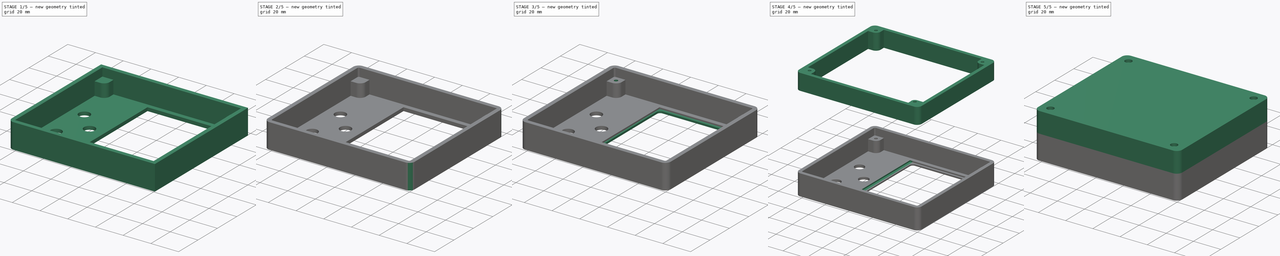
[diagram: build sequence overview — one tinted view per stage of 5, left to right]
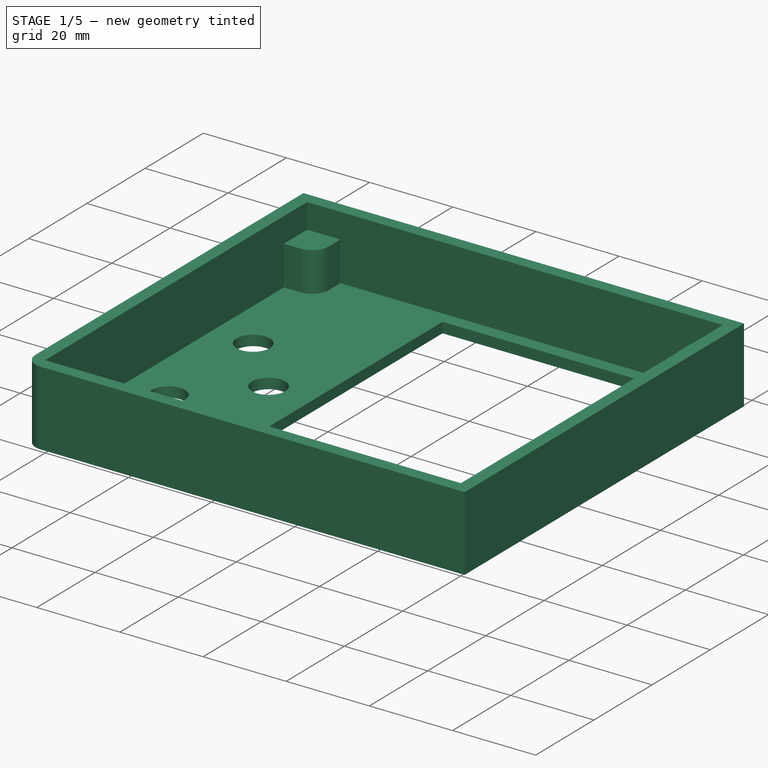
[diagram: stage 1 of 5 — iso view after this stage's code; geometry added in this stage tinted green]
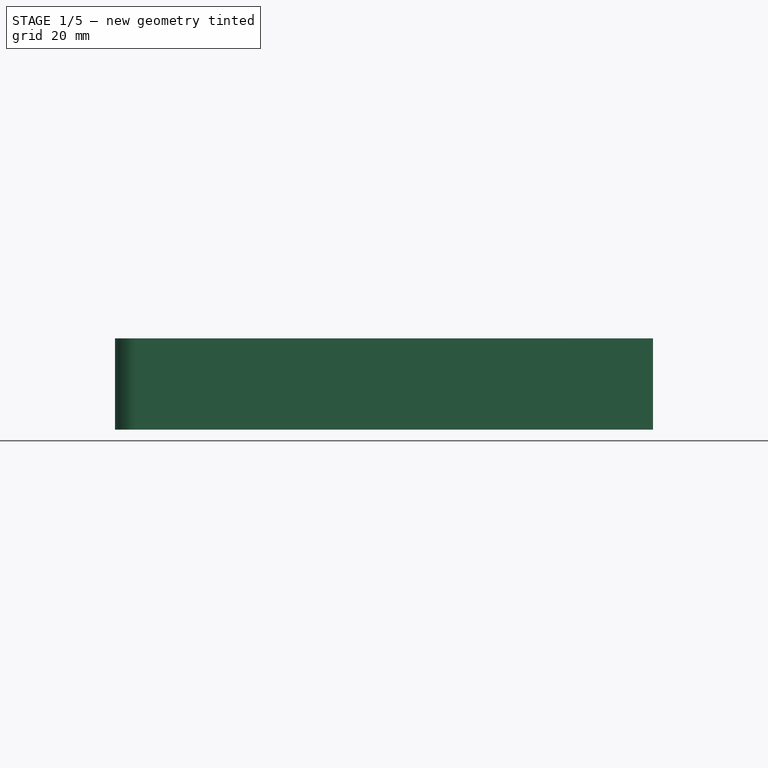
[diagram: stage 1 of 5 — front view after this stage's code; geometry added in this stage tinted green]
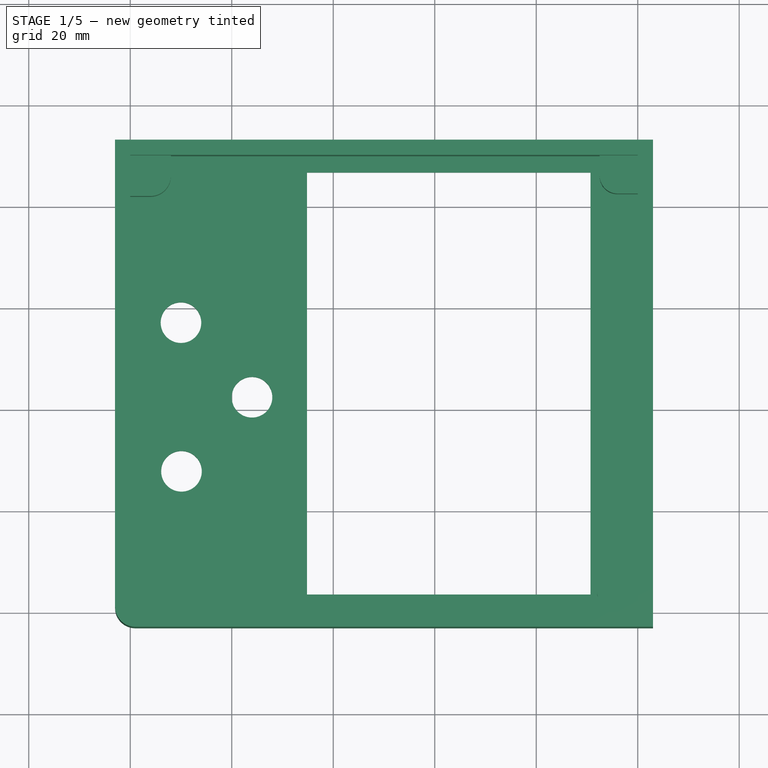
[diagram: stage 1 of 5 — top view after this stage's code; geometry added in this stage tinted green]
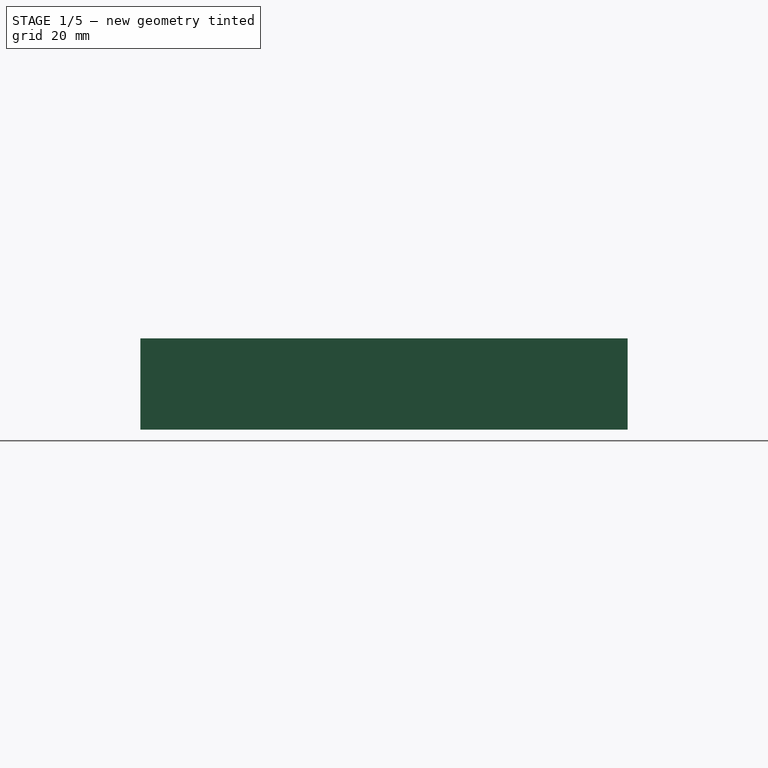
[diagram: stage 1 of 5 — right view after this stage's code; geometry added in this stage tinted green]
FCSTD DOCUMENT  (FreeCAD 0.21R33694 (Git))
Label: TFT_PANEL_ver0.1.3FCStd
License: All rights reserved
LicenseURL: http://en.wikipedia.org/wiki/All_rights_reserved
objects: Part::Fillet×11, Sketcher::SketchObject×10, Part::Extrusion×10, Part::MultiFuse×5, Part::Cut×3
note: 39 computed .brp shape members not serialized (recipe doc carries the construction recipe); baked Part::Feature solids carry a one-line shape summary decoded from their .brp

FEATURE [Sketcher::SketchObject] Sketch
  FullyConstrained = false
  sketch-geometry (18):
    g0: LineSegment StartX=0 StartY=0 StartZ=0 EndX=0 EndY=90 EndZ=0
    g1: LineSegment StartX=0 StartY=90 StartZ=0 EndX=100 EndY=90 EndZ=0
    g2: LineSegment StartX=100 StartY=90 StartZ=0 EndX=100 EndY=0 EndZ=0
    g3: LineSegment StartX=100 StartY=0 StartZ=0 EndX=0 EndY=0 EndZ=0
    g4: LineSegment StartX=90.7 StartY=86.8 StartZ=0 EndX=90.7 EndY=3.61483 EndZ=0
    g5: LineSegment StartX=90.7 StartY=3.61483 StartZ=0 EndX=34.8199 EndY=3.61483 EndZ=0
    g6: LineSegment StartX=34.8199 StartY=3.61483 StartZ=0 EndX=34.8199 EndY=86.8 EndZ=0
    g7: LineSegment StartX=34.8199 StartY=86.8 StartZ=0 EndX=90.7 EndY=86.8 EndZ=0
    g8: Circle CenterX=4.10008 CenterY=4 CenterZ=0 NormalX=0 NormalY=0 NormalZ=-1 AngleXU=0 Radius=1.7
    g9: Circle CenterX=95 CenterY=4 CenterZ=0 NormalX=0 NormalY=0 NormalZ=-1 AngleXU=0 Radius=1.7
    g10: Circle CenterX=4 CenterY=86 CenterZ=0 NormalX=0 NormalY=0 NormalZ=-1 AngleXU=0 Radius=1.7
    g11: Circle CenterX=96 CenterY=86 CenterZ=0 NormalX=0 NormalY=0 NormalZ=-1 AngleXU=0 Radius=1.7
    g12: GeomPoint X=9.98984 Y=57.2035 Z=0
    g13: Circle CenterX=9.98984 CenterY=57.2035 CenterZ=0 NormalX=0 NormalY=0 NormalZ=1 AngleXU=0 Radius=4
    g14: GeomPoint X=23.9903 Y=42.5019 Z=0
    g15: Circle CenterX=23.9903 CenterY=42.5019 CenterZ=0 NormalX=0 NormalY=0 NormalZ=1 AngleXU=0 Radius=4
    g16: GeomPoint X=10.0889 Y=27.902 Z=0
    g17: Circle CenterX=10.0889 CenterY=27.902 CenterZ=0 NormalX=0 NormalY=0 NormalZ=1 AngleXU=0 Radius=4
  constraints (6):
    c: Coincident(g13,g12)
    c: Radius(g13) = 4
    c: Coincident(g15,g14)
    c: Radius(g15) = 4
    c: Coincident(g17,g16)
    c: Radius(g17) = 4
FEATURE [Part::Extrusion] Extrude
  Base = -> Sketch
  Dir = (0,0,1)
  DirMode = 2
  FaceMakerClass = Part::FaceMakerBullseye
  LengthFwd = 2.5
  LengthRev = 0
  Solid = true
  Symmetric = false
FEATURE [Sketcher::SketchObject] Sketch001
  ExternalGeometry = -> [Extrude]
  FullyConstrained = false
  MapMode = 2
  Support = -> [Extrude]
  sketch-geometry (20):
    g0: ArcOfCircle CenterX=4.10008 CenterY=4 CenterZ=0 NormalX=0 NormalY=0 NormalZ=1 AngleXU=0 Radius=4 StartAngle=0 EndAngle=1.79806
    g1: ArcOfCircle CenterX=95 CenterY=4 CenterZ=0 NormalX=0 NormalY=0 NormalZ=1 AngleXU=0 Radius=3 StartAngle=1.52382 EndAngle=3.41066
    g2: ArcOfCircle CenterX=96 CenterY=86 CenterZ=0 NormalX=0 NormalY=0 NormalZ=1 AngleXU=0 Radius=3.5 StartAngle=3.14159 EndAngle=4.76718
    g3: ArcOfCircle CenterX=4 CenterY=86 CenterZ=0 NormalX=0 NormalY=0 NormalZ=1 AngleXU=0 Radius=4 StartAngle=4.70671 EndAngle=6.28463
    g4: LineSegment StartX=-3 StartY=93 StartZ=0 EndX=-3 EndY=-3 EndZ=0
    g5: LineSegment StartX=103 StartY=93 StartZ=0 EndX=103 EndY=-3 EndZ=0
    g6: LineSegment StartX=-3 StartY=-3 StartZ=0 EndX=103 EndY=-3 EndZ=0
    g7: LineSegment StartX=-3 StartY=93 StartZ=0 EndX=103 EndY=93 EndZ=0
    g8: LineSegment StartX=0 StartY=7.89715 StartZ=0 EndX=3.19882 EndY=7.89715 EndZ=0
    g9: LineSegment StartX=8.10008 StartY=0 StartZ=0 EndX=8.10008 EndY=4 EndZ=0
    g10: LineSegment StartX=3.97729 StartY=82.0001 StartZ=0 EndX=0 EndY=82.0001 EndZ=0
    g11: LineSegment StartX=96.1917 StartY=82.5053 StartZ=0 EndX=100 EndY=82.5053 EndZ=0
    g12: LineSegment StartX=8 StartY=86.0058 StartZ=0 EndX=8 EndY=90 EndZ=0
    g13: LineSegment StartX=92.1079 StartY=3.20251 StartZ=0 EndX=92.1079 EndY=0 EndZ=0
    g14: LineSegment StartX=95.1409 StartY=6.99669 StartZ=0 EndX=100 EndY=6.99669 EndZ=0
    g15: LineSegment StartX=0 StartY=82.0001 StartZ=0 EndX=0 EndY=7.89715 EndZ=0
    g16: LineSegment StartX=8 StartY=90 StartZ=0 EndX=92.5 EndY=90 EndZ=0
    g17: LineSegment StartX=8.10008 StartY=0 StartZ=0 EndX=92.1079 EndY=0 EndZ=0
    g18: LineSegment StartX=100 StartY=82.5053 StartZ=0 EndX=100 EndY=6.99669 EndZ=0
    g19: LineSegment StartX=92.5 StartY=86 StartZ=0 EndX=92.5 EndY=90 EndZ=0
  constraints (37):
    c: Radius(g0) = 4
    c: Radius(g1) = 3
    c: Radius(g3) = 4
    c: Radius(g2) = 3.5
    c: Vertical(g4)
    c: Vertical(g5)
    c: Horizontal(g6)
    c: Horizontal(g7)
    c: Horizontal(g8)
    c: Vertical(g9)
    c: Horizontal(g10)
    c: Horizontal(g11)
    c: Vertical(g12)
    c: Vertical(g13)
    c: Horizontal(g14)
    c: Coincident(g4,g6)
    c: Coincident(g0,g8)
    c: Tangent(g0,g9) = -1.5708
    c: Coincident(g1,g13)
    c: Coincident(g1,g14)
    c: Coincident(g6,g5)
    c: Coincident(g2,g11)
    c: Coincident(g5,g7)
    c: Coincident(g7,g4)
    c: Coincident(g3,g12)
    c: Coincident(g3,g10)
    c: Vertical(g15)
    c: Coincident(g16,g12)
    c: Coincident(g18,g11)
    c: Coincident(g18,g14)
    c: Coincident(g13,g17)
    c: Coincident(g17,g9)
    c: Coincident(g8,g15)
    c: Coincident(g10,g15)
    c: Vertical(g19)
    c: Tangent(g2,g19) = 1.5708
    c: Coincident(g19,g16)
FEATURE [Part::Extrusion] Extrude001
  Base = -> Sketch001
  Dir = (0,0,1)
  DirMode = 2
  FaceMakerClass = Part::FaceMakerBullseye
  LengthFwd = 12
  LengthRev = 0
  Solid = true
  Symmetric = false
FEATURE [Part::MultiFuse] Fusion
  Shapes = -> [Extrude001,Extrude]
FEATURE [Sketcher::SketchObject] Sketch002
  ExternalGeometry = -> [Fusion]
  FullyConstrained = false
  MapMode = 5
  Placement = pos=(0,0,12) rot=(0,0,1;0rad)
  Support = -> [Fusion]
  sketch-geometry (8):
    g0: LineSegment StartX=-3 StartY=93 StartZ=0 EndX=-3 EndY=-3 EndZ=0
    g1: LineSegment StartX=-3 StartY=93 StartZ=0 EndX=103 EndY=93 EndZ=0
    g2: LineSegment StartX=103 StartY=93 StartZ=0 EndX=103 EndY=-3 EndZ=0
    g3: LineSegment StartX=-3 StartY=-3 StartZ=0 EndX=103 EndY=-3 EndZ=0
    g4: LineSegment StartX=100 StartY=90 StartZ=0 EndX=100 EndY=0 EndZ=0
    g5: LineSegment StartX=0 StartY=90 StartZ=0 EndX=100 EndY=90 EndZ=0
    g6: LineSegment StartX=0 StartY=90 StartZ=0 EndX=0 EndY=0 EndZ=0
    g7: LineSegment StartX=0 StartY=0 StartZ=0 EndX=100 EndY=0 EndZ=0
  constraints (13):
    c: Coincident(g0,g-4)
    c: Coincident(g0,g-9)
    c: Coincident(g1,g0)
    c: Coincident(g1,g-8)
    c: Coincident(g2,g1)
    c: Coincident(g2,g-9)
    c: Coincident(g3,g0)
    c: Coincident(g3,g2)
    c: Vertical(g4)
    c: Coincident(g6,g5)
    c: Coincident(g5,g4)
    c: Coincident(g7,g4)
    c: Coincident(g6,g7)
FEATURE [Part::Extrusion] Extrude002
  Base = -> Sketch002
  Dir = (0,0,1)
  DirMode = 2
  FaceMakerClass = Part::FaceMakerBullseye
  LengthFwd = 6
  LengthRev = 0
  Solid = true
  Symmetric = false
FEATURE [Part::MultiFuse] Fusion001
  Shapes = -> [Fusion,Extrude002]
FEATURE [Part::Fillet] Fillet
  Base = -> Fusion001
  Edges = 2 edges r=4: [Edge2,Edge12]
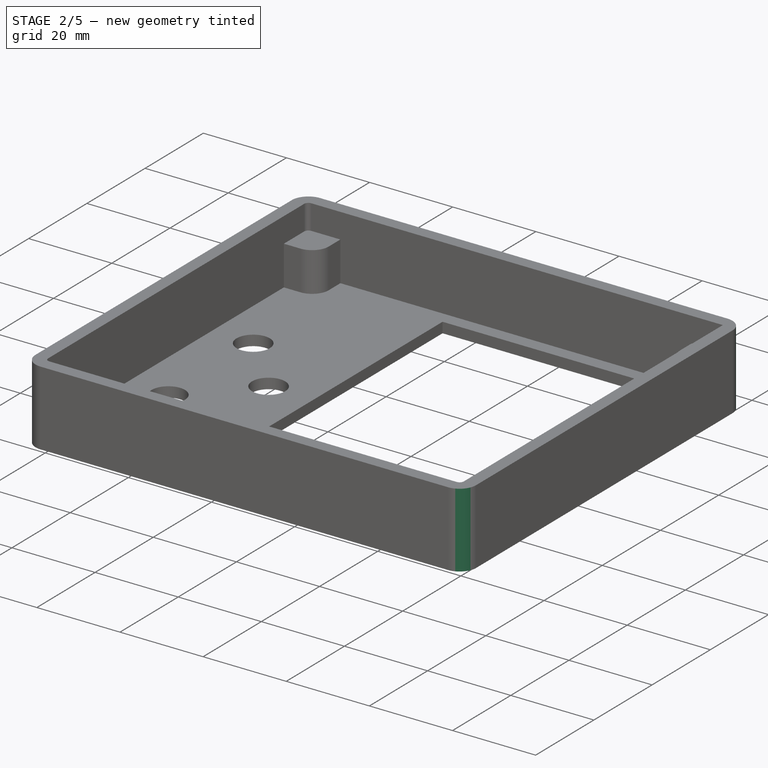
[diagram: stage 2 of 5 — iso view after this stage's code; geometry added in this stage tinted green]
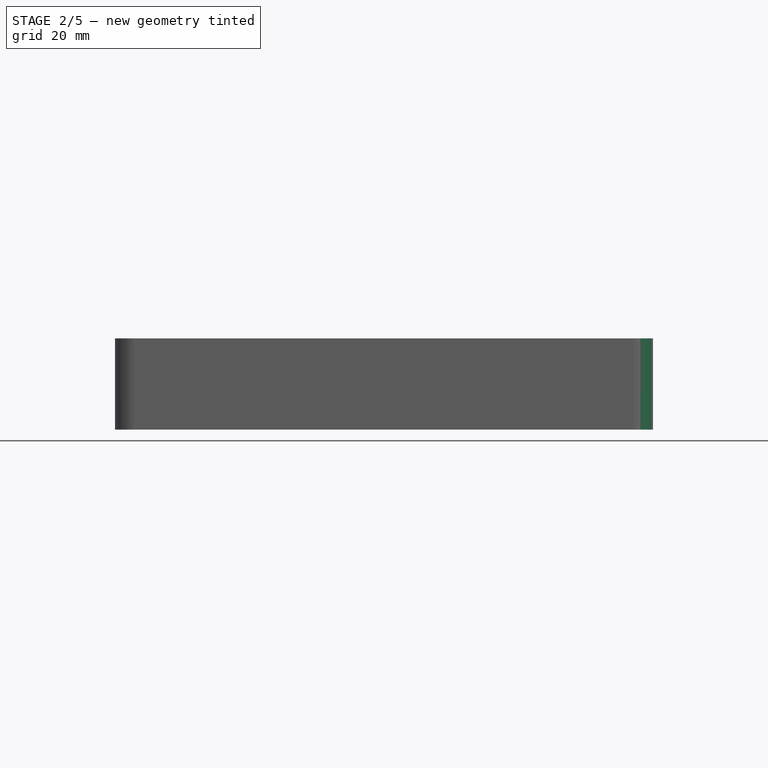
[diagram: stage 2 of 5 — front view after this stage's code; geometry added in this stage tinted green]
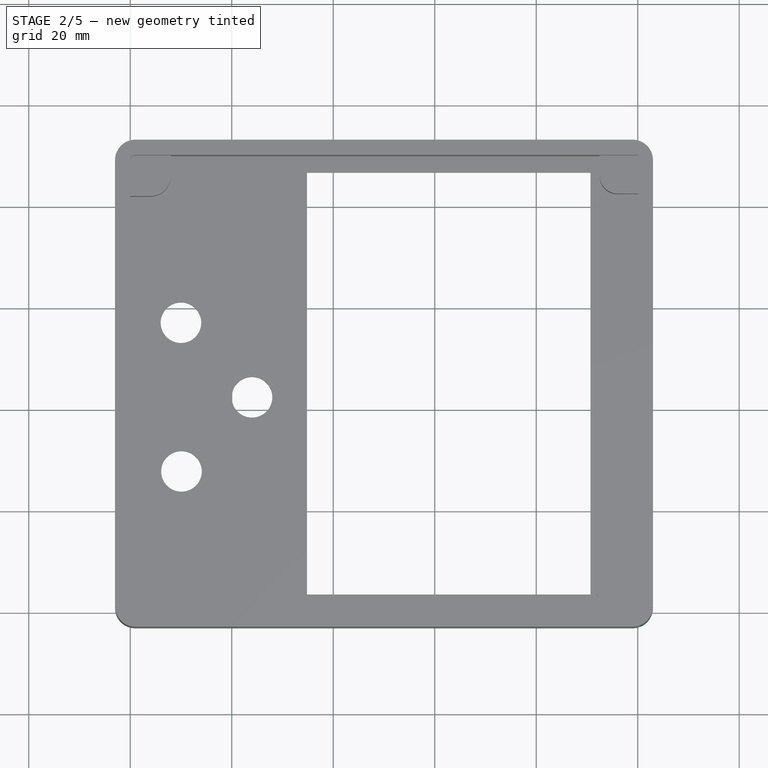
[diagram: stage 2 of 5 — top view after this stage's code; geometry added in this stage tinted green]
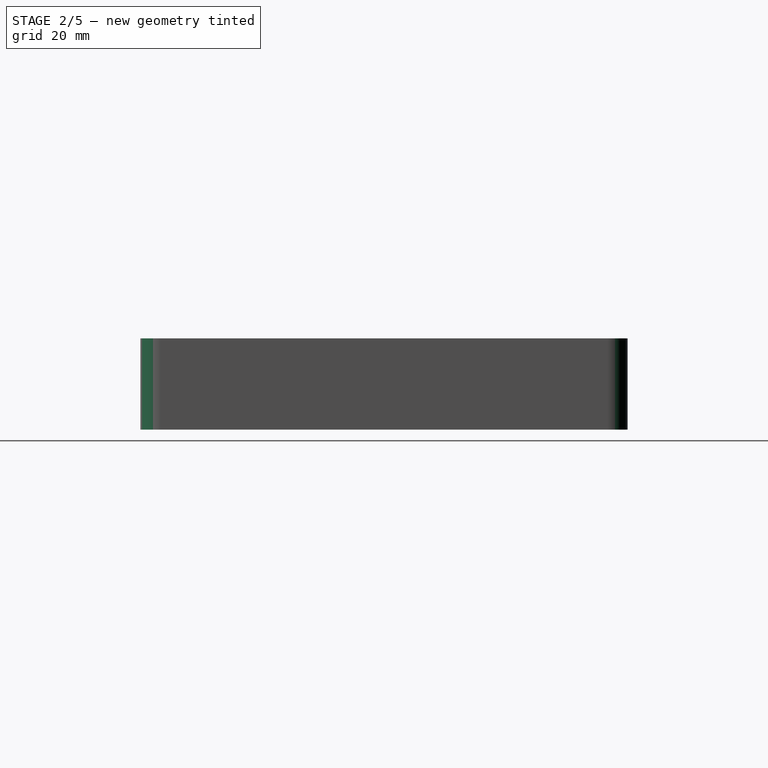
[diagram: stage 2 of 5 — right view after this stage's code; geometry added in this stage tinted green]
FEATURE [Part::Fillet] Fillet001
  Base = -> Fillet
  Edges = 2 edges r=4: [Edge39,Edge57]
FEATURE [Part::Fillet] Fillet002
  Base = -> Fillet001
  Edges = 2 edges r=4: [Edge19,Edge47]
FEATURE [Part::Fillet] Fillet003
  Base = -> Fillet002
  Edges = 2 edges r=4: [Edge20,Edge50]
FEATURE [Part::Fillet] Fillet004
  Base = -> Fillet003
  Edges = 1 edges r=1: [Edge30]
FEATURE [Part::Fillet] Fillet005
  Base = -> Fillet004
  Edges = 1 edges r=1: [Edge28]
FEATURE [Part::Fillet] Fillet006
  Base = -> Fillet005
  Edges = 1 edges r=1: [Edge27]
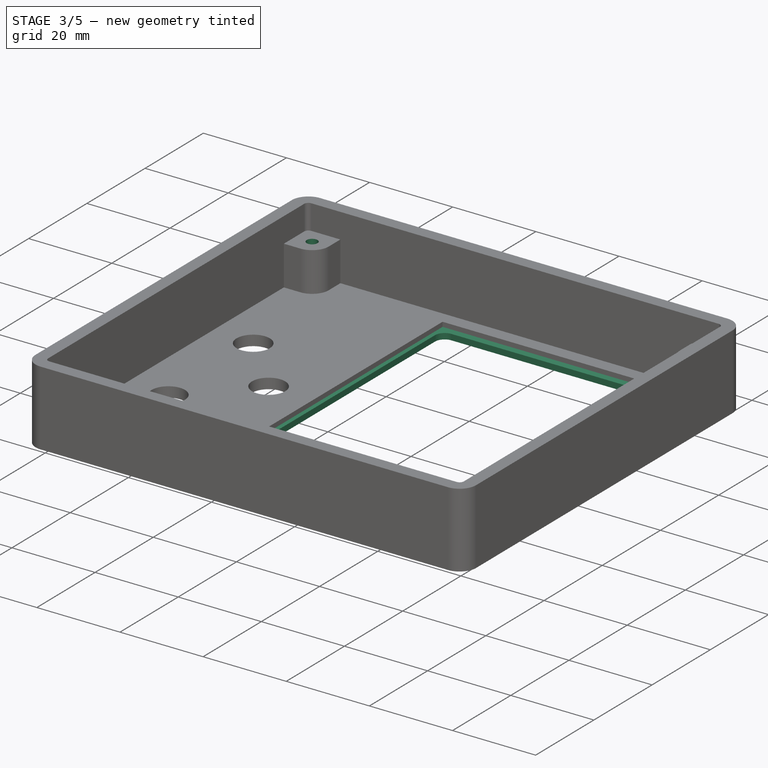
[diagram: stage 3 of 5 — iso view after this stage's code; geometry added in this stage tinted green]
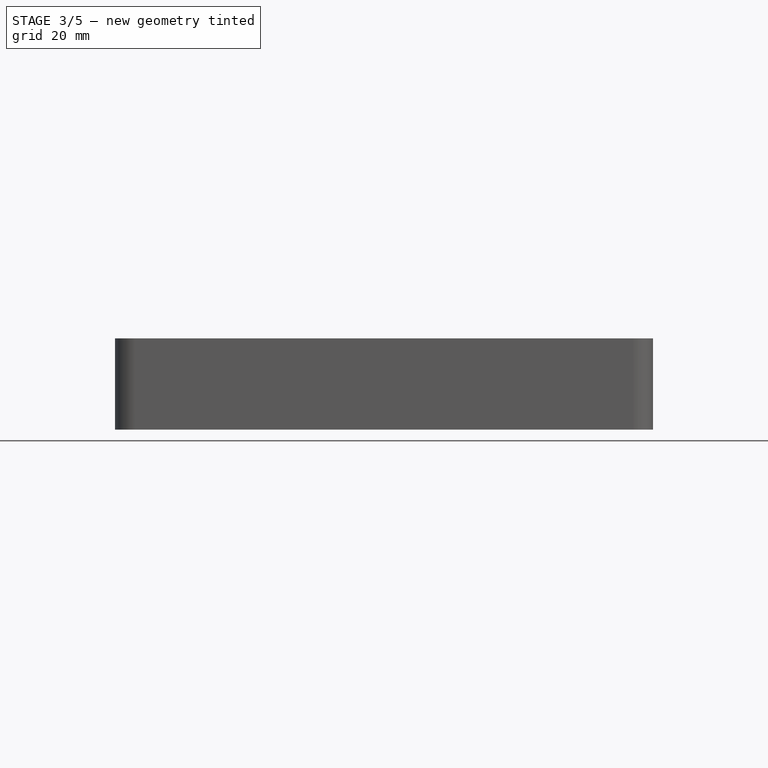
[diagram: stage 3 of 5 — front view after this stage's code; geometry added in this stage tinted green]
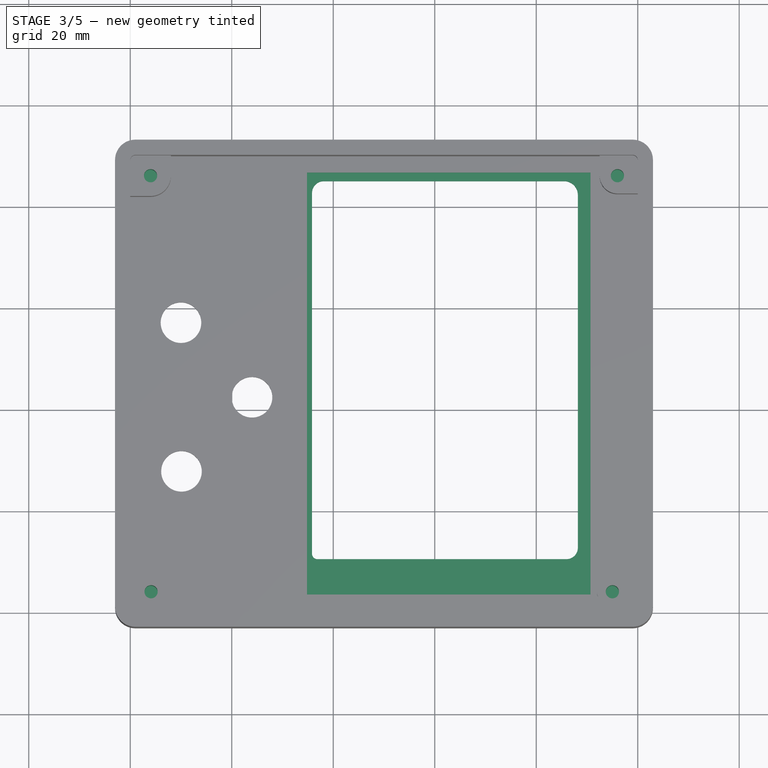
[diagram: stage 3 of 5 — top view after this stage's code; geometry added in this stage tinted green]
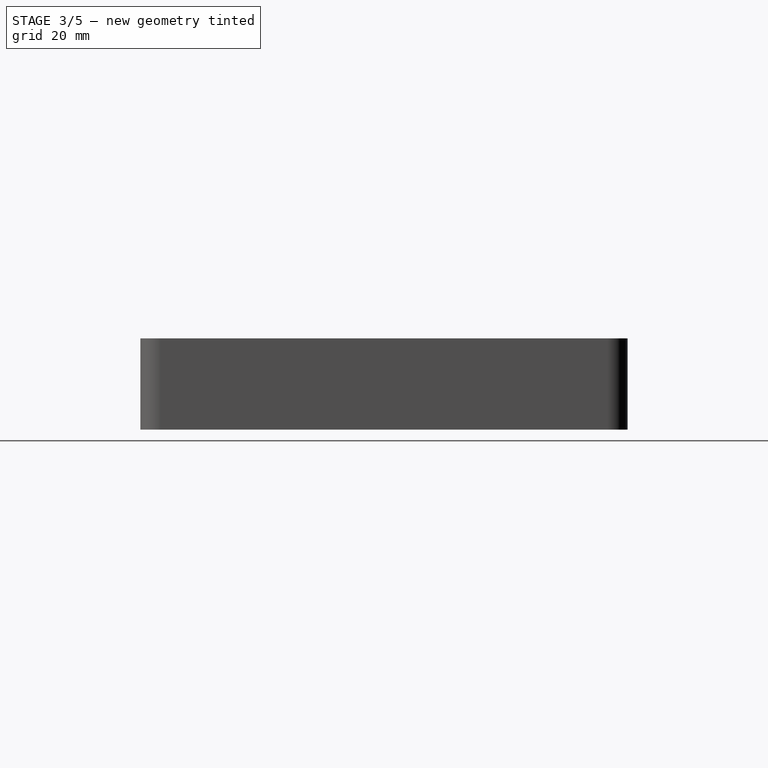
[diagram: stage 3 of 5 — right view after this stage's code; geometry added in this stage tinted green]
FEATURE [Part::Fillet] Fillet007
  Base = -> Fillet006
  Edges = 1 edges r=1: [Edge25]
FEATURE [Sketcher::SketchObject] Sketch003
  ExternalGeometry = -> [Fillet007]
  FullyConstrained = true
  MapMode = 5
  Placement = pos=(0,0,0) rot=(1,0,0;3.14159rad)
  Support = -> [Fillet007]
  sketch-geometry (4):
    g0: Circle CenterX=4.10008 CenterY=-4 CenterZ=0 NormalX=0 NormalY=0 NormalZ=1 AngleXU=0 Radius=1.3
    g1: Circle CenterX=4 CenterY=-86 CenterZ=0 NormalX=0 NormalY=0 NormalZ=1 AngleXU=0 Radius=1.3
    g2: Circle CenterX=96 CenterY=-86 CenterZ=0 NormalX=0 NormalY=0 NormalZ=1 AngleXU=0 Radius=1.3
    g3: Circle CenterX=95 CenterY=-4 CenterZ=0 NormalX=0 NormalY=0 NormalZ=1 AngleXU=0 Radius=1.3
  constraints (8):
    c: Coincident(g0,g-3)
    c: Radius(g0) = 1.3
    c: Coincident(g1,g-4)
    c: Radius(g1) = 1.3
    c: Coincident(g2,g-5)
    c: Radius(g2) = 1.3
    c: Coincident(g3,g-6)
    c: Radius(g3) = 1.3
FEATURE [Part::Extrusion] Extrude003
  Base = -> Sketch003
  Dir = (0,0,-1)
  DirMode = 2
  FaceMakerClass = Part::FaceMakerBullseye
  LengthFwd = 9
  LengthRev = 0
  Placement = pos=(0,0,14) rot=(0,0,1;0rad)
  Solid = true
  Symmetric = false
FEATURE [Part::Cut] Cut
  Base = -> Fillet007
  Tool = -> Extrude003
FEATURE [Sketcher::SketchObject] Sketch004
  ExternalGeometry = -> [Cut]
  FullyConstrained = false
  MapMode = 5
  Placement = pos=(0,0,0) rot=(1,0,0;3.14159rad)
  Support = -> [Cut]
  sketch-geometry (12):
    g0: LineSegment StartX=36.8703 StartY=-10.6148 StartZ=0 EndX=85.9533 EndY=-10.6148 EndZ=0
    g1: LineSegment StartX=38.1351 StartY=-85.1 StartZ=0 EndX=85.492 EndY=-85.1 EndZ=0
    g2: LineSegment StartX=34.8199 StartY=-3.61483 StartZ=0 EndX=34.8199 EndY=-86.8 EndZ=0
    g3: LineSegment StartX=34.8199 StartY=-86.8 StartZ=0 EndX=90.7 EndY=-86.8 EndZ=0
    g4: LineSegment StartX=90.7 StartY=-3.61483 StartZ=0 EndX=90.7 EndY=-86.8 EndZ=0
    g5: LineSegment StartX=34.8199 StartY=-3.61483 StartZ=0 EndX=90.7 EndY=-3.61483 EndZ=0
    g6: LineSegment StartX=35.8199 StartY=-11.6653 StartZ=0 EndX=35.8199 EndY=-82.7848 EndZ=0
    g7: LineSegment StartX=88.2 StartY=-12.8615 StartZ=0 EndX=88.2 EndY=-82.392 EndZ=0
    g8: ArcOfCircle CenterX=36.8703 CenterY=-11.6653 CenterZ=0 NormalX=0 NormalY=0 NormalZ=1 AngleXU=0 Radius=1.05043 StartAngle=1.5708 EndAngle=3.14159
    g9: ArcOfCircle CenterX=85.9533 CenterY=-12.8615 CenterZ=0 NormalX=0 NormalY=0 NormalZ=1 AngleXU=0 Radius=2.24671 StartAngle=0 EndAngle=1.5708
    g10: ArcOfCircle CenterX=85.492 CenterY=-82.392 CenterZ=0 NormalX=0 NormalY=0 NormalZ=1 AngleXU=0 Radius=2.70796 StartAngle=4.71239 EndAngle=6.28319
    g11: ArcOfCircle CenterX=38.1351 CenterY=-82.7848 CenterZ=0 NormalX=0 NormalY=0 NormalZ=1 AngleXU=0 Radius=2.31524 StartAngle=3.14159 EndAngle=4.71239
  constraints (20):
    c: Horizontal(g0)
    c: Horizontal(g1)
    c: Coincident(g3,g2)
    c: Coincident(g4,g3)
    c: Coincident(g5,g2)
    c: Coincident(g5,g4)
    c: Vertical(g6)
    c: Distance(g2,g6) = 1
    c: Distance(g2,g0) = 7
    c: Distance(g3,g1) = 1.7
    c: Distance(g3,g7) = 2.5
    c: Vertical(g7)
    c: Tangent(g6,g8) = -1.5708
    c: Tangent(g0,g8) = 1.5708
    c: Tangent(g0,g9) = 1.5708
    c: Tangent(g7,g9) = 1.5708
    c: Tangent(g7,g10) = 1.5708
    c: Tangent(g1,g10) = -1.5708
    c: Tangent(g6,g11) = -1.5708
    c: Tangent(g1,g11) = -1.5708
FEATURE [Part::Extrusion] Extrude004  label="okno"
  Base = -> Sketch004
  Dir = (0,0,-1)
  DirMode = 2
  FaceMakerClass = Part::FaceMakerBullseye
  LengthFwd = 1.4
  LengthRev = 0
  Placement = pos=(0,0,1.4) rot=(0,0,1;0rad)
  Solid = true
  Symmetric = false
FEATURE [Part::MultiFuse] Fusion002
  Shapes = -> [Extrude004,Cut]
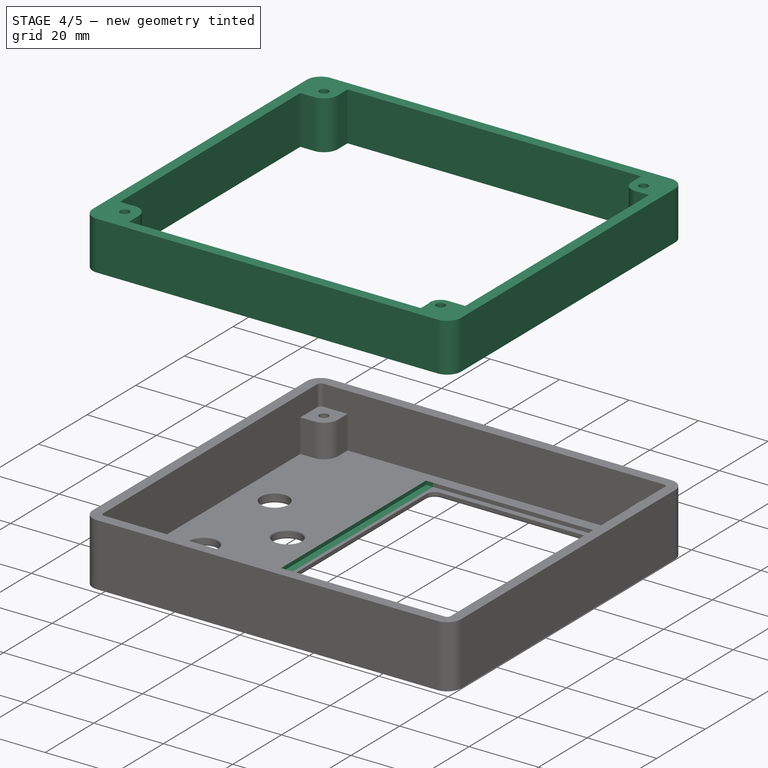
[diagram: stage 4 of 5 — iso view after this stage's code; geometry added in this stage tinted green]
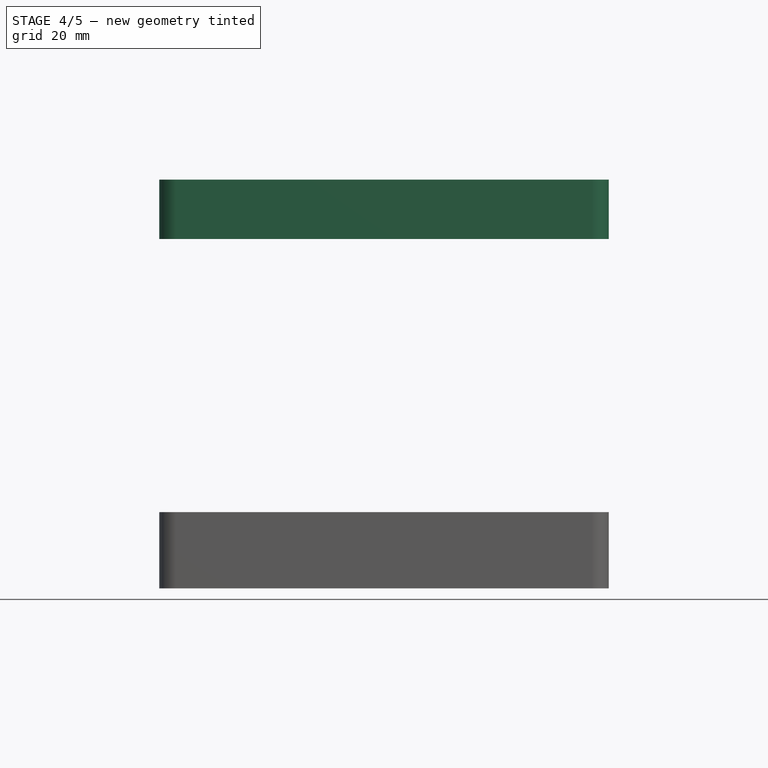
[diagram: stage 4 of 5 — front view after this stage's code; geometry added in this stage tinted green]
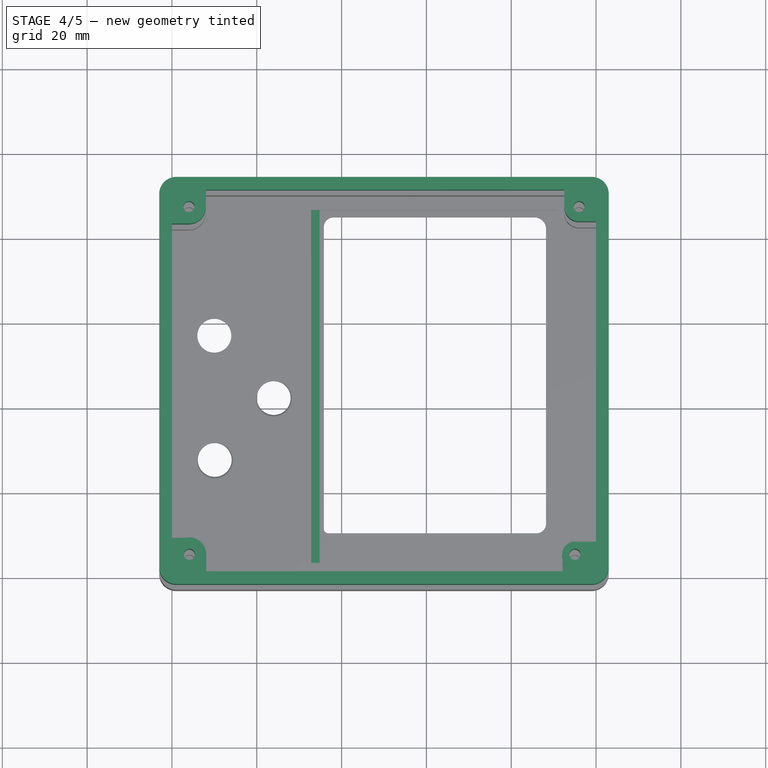
[diagram: stage 4 of 5 — top view after this stage's code; geometry added in this stage tinted green]
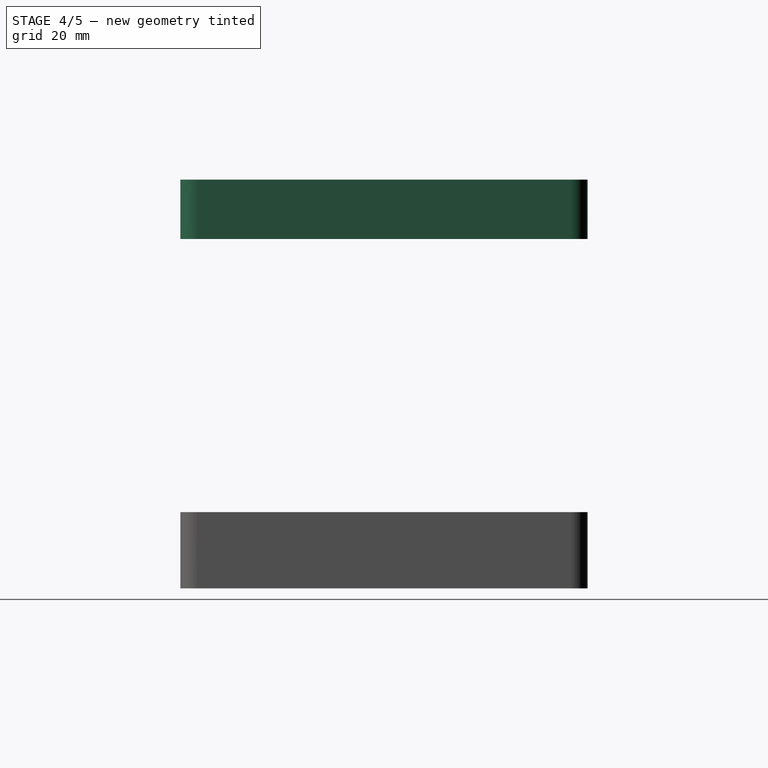
[diagram: stage 4 of 5 — right view after this stage's code; geometry added in this stage tinted green]
FEATURE [Part::Fillet] Fillet008
  Base = -> Fusion002
  Edges = 3 edges r=0.5: [Edge57,Edge58,Edge59]
FEATURE [Part::Fillet] Fillet009
  Base = -> Fillet008
  Edges = 8 edges r=0.5: [Edge46,Edge47,Edge48,Edge49,Edge50,Edge51,Edge52,Edge53]
FEATURE [Part::Fillet] Fillet010  label="panel"
  Base = -> Fillet009
  Edges = 2 edges r=0.5: [Edge95,Edge113]
FEATURE [Sketcher::SketchObject] Sketch005
  ExternalGeometry = -> [Fillet010]
  FullyConstrained = false
  MapMode = 2
  Support = -> [Fillet010]
  sketch-geometry (28):
    g0: LineSegment StartX=0 StartY=82.0001 StartZ=0 EndX=0 EndY=7.89715 EndZ=0
    g1: LineSegment StartX=0 StartY=7.89715 StartZ=0 EndX=3.19882 EndY=7.89715 EndZ=0
    g2: LineSegment StartX=8.10008 StartY=0 StartZ=0 EndX=92.1079 EndY=0 EndZ=0
    g3: LineSegment StartX=92.1079 StartY=3.20251 StartZ=0 EndX=92.1079 EndY=0 EndZ=0
    g4: LineSegment StartX=8.10008 StartY=4 StartZ=0 EndX=8.10008 EndY=0 EndZ=0
    g5: LineSegment StartX=8 StartY=90 StartZ=0 EndX=92.5 EndY=90 EndZ=0
    g6: LineSegment StartX=100 StartY=82.5053 StartZ=0 EndX=100 EndY=6.99669 EndZ=0
    g7: LineSegment StartX=100 StartY=6.99669 StartZ=0 EndX=95.1409 EndY=6.99669 EndZ=0
    g8: LineSegment StartX=100 StartY=82.5053 StartZ=0 EndX=96.1917 EndY=82.5053 EndZ=0
    g9: LineSegment StartX=92.5 StartY=90 StartZ=0 EndX=92.5 EndY=86 EndZ=0
    g10: LineSegment StartX=3.97729 StartY=82.0001 StartZ=0 EndX=0 EndY=82.0001 EndZ=0
    g11: LineSegment StartX=8 StartY=90 StartZ=0 EndX=8 EndY=86.0058 EndZ=0
    g12: ArcOfCircle CenterX=1 CenterY=89 CenterZ=0 NormalX=0 NormalY=0 NormalZ=1 AngleXU=0 Radius=4 StartAngle=1.5708 EndAngle=3.14159
    g13: ArcOfCircle CenterX=4 CenterY=86 CenterZ=0 NormalX=0 NormalY=0 NormalZ=1 AngleXU=0 Radius=4 StartAngle=4.70671 EndAngle=6.28463
    g14: ArcOfCircle CenterX=99 CenterY=89 CenterZ=0 NormalX=0 NormalY=0 NormalZ=1 AngleXU=0 Radius=4 StartAngle=0 EndAngle=1.5708
    g15: ArcOfCircle CenterX=96 CenterY=86 CenterZ=0 NormalX=0 NormalY=0 NormalZ=1 AngleXU=0 Radius=3.5 StartAngle=3.14159 EndAngle=4.76718
    g16: ArcOfCircle CenterX=1 CenterY=1 CenterZ=0 NormalX=0 NormalY=0 NormalZ=1 AngleXU=0 Radius=4 StartAngle=3.14159 EndAngle=4.71239
    g17: ArcOfCircle CenterX=4.10008 CenterY=4 CenterZ=0 NormalX=0 NormalY=0 NormalZ=1 AngleXU=0 Radius=4 StartAngle=0 EndAngle=1.79806
    g18: ArcOfCircle CenterX=95 CenterY=4 CenterZ=0 NormalX=0 NormalY=0 NormalZ=1 AngleXU=0 Radius=3 StartAngle=1.52382 EndAngle=3.41066
    g19: ArcOfCircle CenterX=99 CenterY=1 CenterZ=0 NormalX=0 NormalY=0 NormalZ=1 AngleXU=0 Radius=4 StartAngle=4.71239 EndAngle=6.28319
    g20: Circle CenterX=4 CenterY=86 CenterZ=0 NormalX=0 NormalY=0 NormalZ=1 AngleXU=0 Radius=1.3
    g21: Circle CenterX=96 CenterY=86 CenterZ=0 NormalX=0 NormalY=0 NormalZ=1 AngleXU=0 Radius=1.3
    g22: Circle CenterX=4.10008 CenterY=4 CenterZ=0 NormalX=0 NormalY=0 NormalZ=1 AngleXU=0 Radius=1.3
    g23: Circle CenterX=95 CenterY=4 CenterZ=0 NormalX=0 NormalY=0 NormalZ=1 AngleXU=0 Radius=1.3
    g24: LineSegment StartX=-3 StartY=89 StartZ=0 EndX=-3 EndY=1 EndZ=0
    g25: LineSegment StartX=1 StartY=93 StartZ=0 EndX=99 EndY=93 EndZ=0
    g26: LineSegment StartX=103 StartY=89 StartZ=0 EndX=103 EndY=1 EndZ=0
    g27: LineSegment StartX=99 StartY=-3 StartZ=0 EndX=1 EndY=-3 EndZ=0
  constraints (35):
    c: Coincident(g20,g13)
    c: Coincident(g21,g15)
    c: Radius(g21) = 1.3
    c: Coincident(g22,g17)
    c: Coincident(g23,g18)
    c: Radius(g23) = 1.3
    c: Horizontal(g5)
    c: Coincident(g0,g1)
    c: Coincident(g0,g10)
    c: Coincident(g1,g17)
    c: Coincident(g10,g13)
    c: Coincident(g11,g13)
    c: Coincident(g5,g11)
    c: Coincident(g2,g4)
    c: Coincident(g4,g17)
    c: Coincident(g2,g3)
    c: Coincident(g3,g18)
    c: Coincident(g9,g15)
    c: Coincident(g5,g9)
    c: Coincident(g7,g18)
    c: Coincident(g8,g15)
    c: Coincident(g6,g7)
    c: Coincident(g6,g8)
    c: Coincident(g24,g12)
    c: Coincident(g24,g16)
    c: Vertical(g24)
    c: Coincident(g25,g12)
    c: Coincident(g25,g14)
    c: Horizontal(g25)
    c: Coincident(g26,g14)
    c: Coincident(g26,g19)
    c: Vertical(g26)
    c: Coincident(g27,g19)
    c: Coincident(g27,g16)
    c: Horizontal(g27)
FEATURE [Part::Extrusion] Extrude005
  Base = -> Sketch005
  Dir = (0,0,1)
  DirMode = 2
  FaceMakerClass = Part::FaceMakerBullseye
  LengthFwd = 14
  LengthRev = 0
  Placement = pos=(0,0,82.4) rot=(0,0,1;0rad)
  Solid = true
  Symmetric = false
FEATURE [Sketcher::SketchObject] Sketch009
  ExternalGeometry = -> [Fillet010]
  FullyConstrained = true
  sketch-geometry (4):
    g0: LineSegment StartX=34.8199 StartY=86.8 StartZ=0 EndX=34.8199 EndY=3.61483 EndZ=0
    g1: LineSegment StartX=37.8199 StartY=86.8 StartZ=0 EndX=37.8199 EndY=3.61483 EndZ=0
    g2: LineSegment StartX=34.8199 StartY=86.8 StartZ=0 EndX=37.8199 EndY=86.8 EndZ=0
    g3: LineSegment StartX=34.8199 StartY=3.61483 StartZ=0 EndX=37.8199 EndY=3.61483 EndZ=0
  constraints (11):
    c: Coincident(g0,g-4)
    c: Coincident(g0,g-5)
    c: Vertical(g1)
    c: Equal(g0,g1)
    c: Distance(g0,g1) = 3
    c: PointOnObject(g1,g-4)
    c: Coincident(g2,g0)
    c: PointOnObject(g2,g1)
    c: Horizontal(g2)
    c: Coincident(g3,g0)
    c: Coincident(g3,g1)
FEATURE [Part::Extrusion] Extrude009
  Base = -> Sketch009
  Dir = (0,0,1)
  DirMode = 2
  FaceMakerClass = Part::FaceMakerBullseye
  LengthFwd = 2
  LengthRev = 0
  Placement = pos=(-2,0,1.4) rot=(0,0,1;0rad)
  Solid = true
  Symmetric = false
FEATURE [Part::Cut] Cut002  label="Panel_top"
  Base = -> Fillet010
  Tool = -> Extrude009
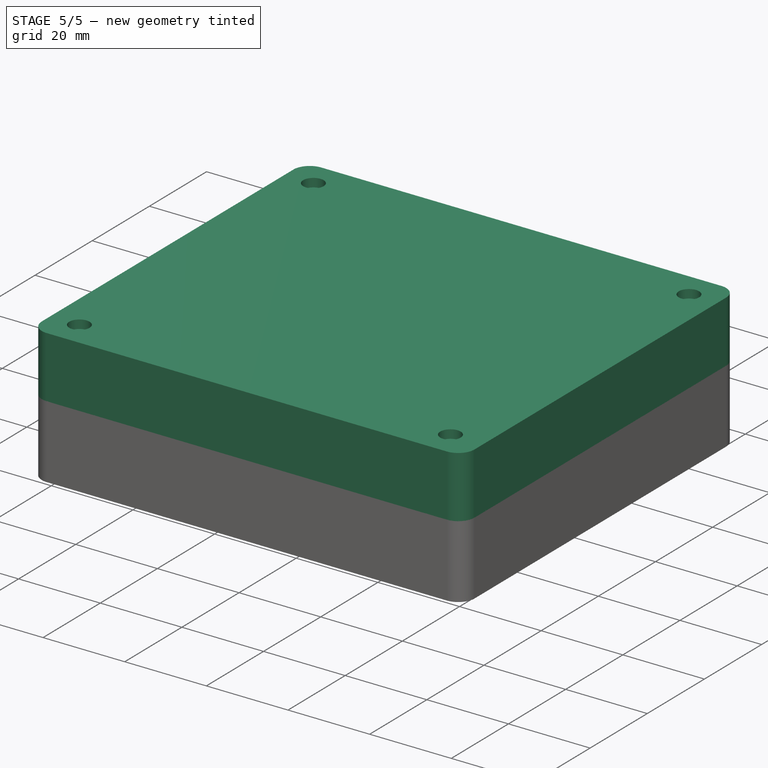
[diagram: stage 5 of 5 — iso view after this stage's code; geometry added in this stage tinted green]
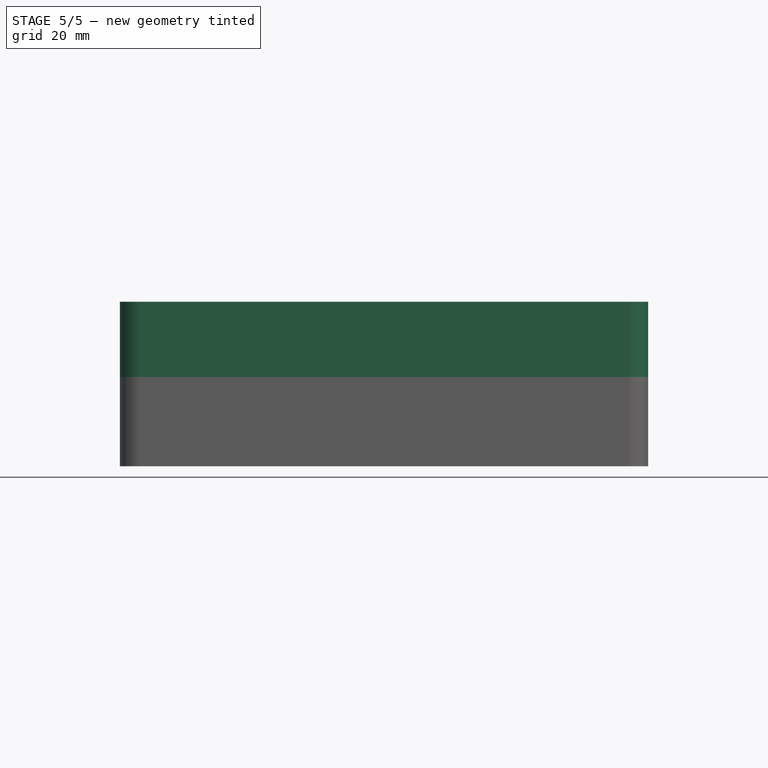
[diagram: stage 5 of 5 — front view after this stage's code; geometry added in this stage tinted green]
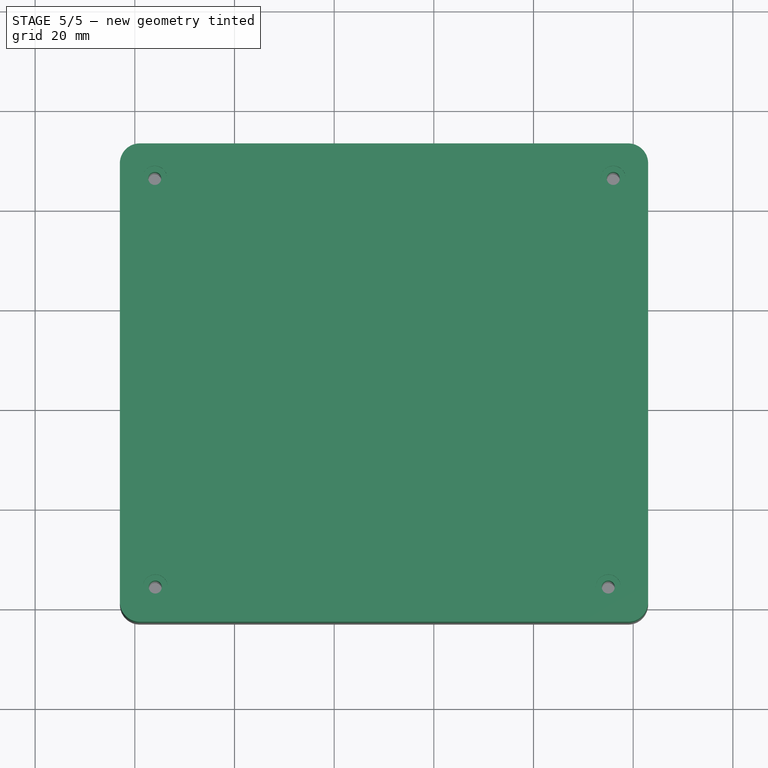
[diagram: stage 5 of 5 — top view after this stage's code; geometry added in this stage tinted green]
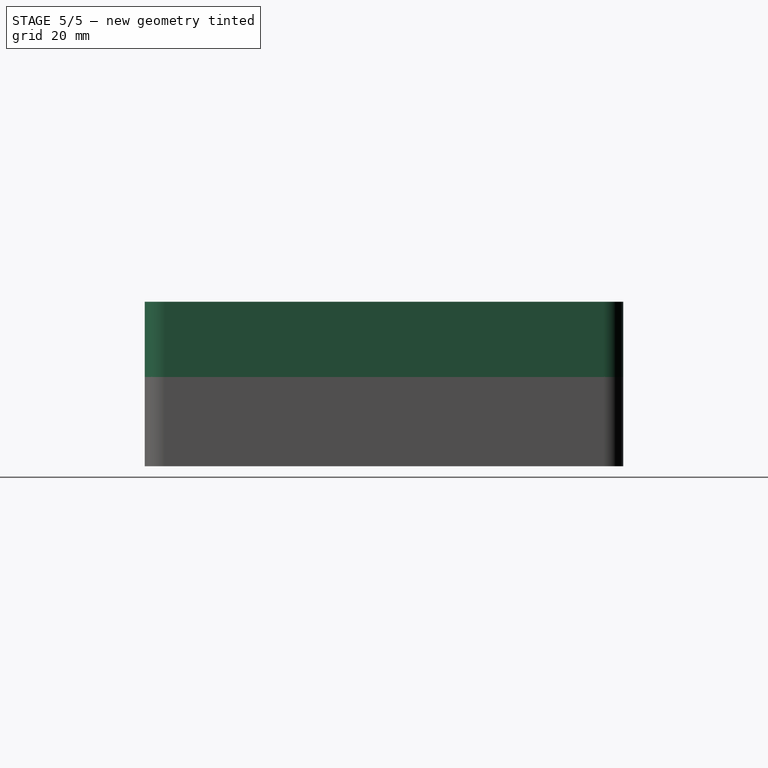
[diagram: stage 5 of 5 — right view after this stage's code; geometry added in this stage tinted green]
FEATURE [Sketcher::SketchObject] Sketch006
  ExternalGeometry = -> [Fillet010]
  FullyConstrained = false
  MapMode = 2
  Placement = pos=(0,0,82.4) rot=(0,0,1;0rad)
  Support = -> [Extrude005]
  sketch-geometry (24):
    g0: LineSegment StartX=0.5 StartY=82.0001 StartZ=0 EndX=3.97729 EndY=82.0001 EndZ=0
    g1: LineSegment StartX=8 StartY=89.5 StartZ=0 EndX=8 EndY=86.0058 EndZ=0
    g2: ArcOfCircle CenterX=4 CenterY=86 CenterZ=0 NormalX=0 NormalY=0 NormalZ=1 AngleXU=0 Radius=4 StartAngle=4.70671 EndAngle=6.28463
    g3: ArcOfCircle CenterX=96 CenterY=86 CenterZ=0 NormalX=0 NormalY=0 NormalZ=1 AngleXU=0 Radius=3.5 StartAngle=3.14159 EndAngle=4.76718
    g4: ArcOfCircle CenterX=95 CenterY=4 CenterZ=0 NormalX=0 NormalY=0 NormalZ=1 AngleXU=0 Radius=3 StartAngle=1.52382 EndAngle=3.41066
    g5: ArcOfCircle CenterX=4.10008 CenterY=4 CenterZ=0 NormalX=0 NormalY=0 NormalZ=1 AngleXU=0 Radius=4 StartAngle=0 EndAngle=1.79806
    g6: LineSegment StartX=92.5 StartY=89.5 StartZ=0 EndX=92.5 EndY=86 EndZ=0
    g7: LineSegment StartX=96.1917 StartY=82.5053 StartZ=0 EndX=99.5 EndY=82.5053 EndZ=0
    g8: LineSegment StartX=99.5 StartY=6.99669 StartZ=0 EndX=95.1409 EndY=6.99669 EndZ=0
    g9: LineSegment StartX=92.1079 StartY=3.20251 StartZ=0 EndX=92.1079 EndY=0.5 EndZ=0
    g10: LineSegment StartX=0.5 StartY=7.89715 StartZ=0 EndX=3.19882 EndY=7.89715 EndZ=0
    g11: LineSegment StartX=8.10008 StartY=4 StartZ=0 EndX=8.10008 EndY=0.5 EndZ=0
    g12: LineSegment StartX=0.5 StartY=7.89715 StartZ=0 EndX=0.5 EndY=0.5 EndZ=0
    g13: Circle CenterX=96 CenterY=86 CenterZ=0 NormalX=0 NormalY=0 NormalZ=1 AngleXU=0 Radius=1.5
    g14: Circle CenterX=4 CenterY=86 CenterZ=0 NormalX=0 NormalY=0 NormalZ=1 AngleXU=0 Radius=1.5
    g15: Circle CenterX=95 CenterY=4 CenterZ=0 NormalX=0 NormalY=0 NormalZ=1 AngleXU=0 Radius=1.5
    g16: Circle CenterX=4.10008 CenterY=4 CenterZ=0 NormalX=0 NormalY=0 NormalZ=1 AngleXU=0 Radius=1.5
    g17: LineSegment StartX=99.5 StartY=6.99669 StartZ=0 EndX=99.5 EndY=0.5 EndZ=0
    g18: LineSegment StartX=0.5 StartY=89.5 StartZ=0 EndX=8 EndY=89.5 EndZ=0
    g19: LineSegment StartX=0.5 StartY=0.5 StartZ=0 EndX=8.10008 EndY=0.5 EndZ=0
    g20: LineSegment StartX=92.1079 StartY=0.5 StartZ=0 EndX=99.5 EndY=0.5 EndZ=0
    g21: LineSegment StartX=0.5 StartY=89.5 StartZ=0 EndX=0.5 EndY=82.0001 EndZ=0
    g22: LineSegment StartX=92.5 StartY=89.5 StartZ=0 EndX=99.5 EndY=89.5 EndZ=0
    g23: LineSegment StartX=99.5 StartY=89.5 StartZ=0 EndX=99.5 EndY=82.5053 EndZ=0
  constraints (38):
    c: Coincident(g0,g-4)
    c: Coincident(g1,g-5)
    c: Coincident(g2,g-4)
    c: PointOnObject(g2,g1)
    c: PointOnObject(g2,g0)
    c: Coincident(g3,g-20)
    c: Coincident(g4,g-15)
    c: Coincident(g5,g-10)
    c: Coincident(g7,g-21)
    c: Coincident(g8,g-16)
    c: Coincident(g9,g-15)
    c: Coincident(g10,g-10)
    c: Coincident(g11,g-11)
    c: Coincident(g5,g10)
    c: Coincident(g3,g7)
    c: Tangent(g3,g6) = -1.5708
    c: Coincident(g4,g9)
    c: Coincident(g0,g21)
    c: Coincident(g10,g12)
    c: Coincident(g13,g3)
    c: Radius(g13) = 1.5
    c: Radius(g14) = 1.5
    c: Coincident(g15,g4)
    c: Radius(g15) = 1.5
    c: Coincident(g16,g5)
    c: Radius(g16) = 1.5
    c: Coincident(g23,g7)
    c: Coincident(g8,g17)
    c: Horizontal(g18)
    c: Horizontal(g19)
    c: Coincident(g12,g19)
    c: Coincident(g19,g11)
    c: Coincident(g9,g20)
    c: Coincident(g20,g17)
    c: Coincident(g18,g21)
    c: Coincident(g18,g1)
    c: Coincident(g6,g22)
    c: Coincident(g22,g23)
FEATURE [Part::Extrusion] Extrude006
  Base = -> Sketch006
  Dir = (0,0,1)
  DirMode = 2
  FaceMakerClass = Part::FaceMakerBullseye
  LengthFwd = 3
  LengthRev = 0
  Placement = pos=(0,0,-2.5) rot=(0,0,1;0rad)
  Solid = true
  Symmetric = false
FEATURE [Part::MultiFuse] Fusion003  label="kryshka"
  Shapes = -> [Extrude005,Extrude006]
FEATURE [Sketcher::SketchObject] Sketch007
  ExternalGeometry = -> [Fusion003]
  FullyConstrained = true
  MapMode = 2
  Support = -> [Fusion003]
  sketch-geometry (8):
    g0: ArcOfCircle CenterX=1 CenterY=89 CenterZ=0 NormalX=0 NormalY=0 NormalZ=1 AngleXU=0 Radius=4 StartAngle=1.5708 EndAngle=3.14159
    g1: ArcOfCircle CenterX=99 CenterY=89 CenterZ=0 NormalX=0 NormalY=0 NormalZ=1 AngleXU=0 Radius=4 StartAngle=0 EndAngle=1.5708
    g2: ArcOfCircle CenterX=99 CenterY=1 CenterZ=0 NormalX=0 NormalY=0 NormalZ=1 AngleXU=0 Radius=4 StartAngle=4.71239 EndAngle=6.28319
    g3: ArcOfCircle CenterX=1 CenterY=1 CenterZ=0 NormalX=0 NormalY=0 NormalZ=1 AngleXU=0 Radius=4 StartAngle=3.14159 EndAngle=4.71239
    g4: LineSegment StartX=-3 StartY=89 StartZ=0 EndX=-3 EndY=1 EndZ=0
    g5: LineSegment StartX=1 StartY=-3 StartZ=0 EndX=99 EndY=-3 EndZ=0
    g6: LineSegment StartX=103 StartY=89 StartZ=0 EndX=103 EndY=1 EndZ=0
    g7: LineSegment StartX=1 StartY=93 StartZ=0 EndX=99 EndY=93 EndZ=0
  constraints (22):
    c: Coincident(g0,g-4)
    c: Coincident(g1,g-6)
    c: PointOnObject(g-7,g1)
    c: Coincident(g2,g-8)
    c: Coincident(g3,g-10)
    c: PointOnObject(g-10,g3)
    c: Coincident(g4,g-4)
    c: Coincident(g4,g-10)
    c: Coincident(g5,g-10)
    c: Coincident(g5,g-9)
    c: Coincident(g6,g-7)
    c: Coincident(g6,g-8)
    c: Coincident(g7,g-5)
    c: Coincident(g7,g-6)
    c: Coincident(g0,g4)
    c: Coincident(g0,g-5)
    c: Coincident(g1,g7)
    c: Coincident(g1,g6)
    c: Coincident(g2,g6)
    c: Coincident(g2,g5)
    c: Coincident(g3,g5)
    c: Coincident(g3,g4)
FEATURE [Part::Extrusion] Extrude007
  Base = -> Sketch007
  Dir = (0,0,1)
  DirMode = 2
  FaceMakerClass = Part::FaceMakerBullseye
  LengthFwd = 2
  LengthRev = 0
  Placement = pos=(0,0,95.5) rot=(0,0,1;0rad)
  Solid = true
  Symmetric = false
FEATURE [Part::MultiFuse] Fusion004  label="cap_panel"
  Placement = pos=(0,0,-65) rot=(0,0,1;0rad)
  Shapes = -> [Fusion003,Extrude007]
FEATURE [Sketcher::SketchObject] Sketch008
  ExternalGeometry = -> [Fillet010]
  FullyConstrained = true
  MapMode = 2
  Placement = pos=(0,0,-65) rot=(0,0,1;0rad)
  Support = -> [Fusion004]
  sketch-geometry (4):
    g0: Circle CenterX=4 CenterY=86 CenterZ=0 NormalX=0 NormalY=0 NormalZ=1 AngleXU=0 Radius=2.5
    g1: Circle CenterX=96 CenterY=86 CenterZ=0 NormalX=0 NormalY=0 NormalZ=1 AngleXU=0 Radius=2.5
    g2: Circle CenterX=4.10008 CenterY=4 CenterZ=0 NormalX=0 NormalY=0 NormalZ=1 AngleXU=0 Radius=2.5
    g3: Circle CenterX=95 CenterY=4 CenterZ=0 NormalX=0 NormalY=0 NormalZ=1 AngleXU=0 Radius=2.5
  constraints (8):
    c: Coincident(g0,g-3)
    c: Radius(g0) = 2.5
    c: Coincident(g1,g-4)
    c: Radius(g1) = 2.5
    c: Coincident(g2,g-6)
    c: Radius(g2) = 2.5
    c: Coincident(g3,g-5)
    c: Radius(g3) = 2.5
FEATURE [Part::Extrusion] Extrude008
  Base = -> Sketch008
  Dir = (0,0,1)
  DirMode = 2
  FaceMakerClass = Part::FaceMakerBullseye
  LengthFwd = 3
  LengthRev = 0
  Placement = pos=(0,0,95.4) rot=(0,0,1;0rad)
  Solid = true
  Symmetric = false
FEATURE [Part::Cut] Cut001  label="Panel_cup"
  Base = -> Fusion004
  Placement = pos=(0,0,0.5) rot=(0,0,1;0rad)
  Tool = -> Extrude008
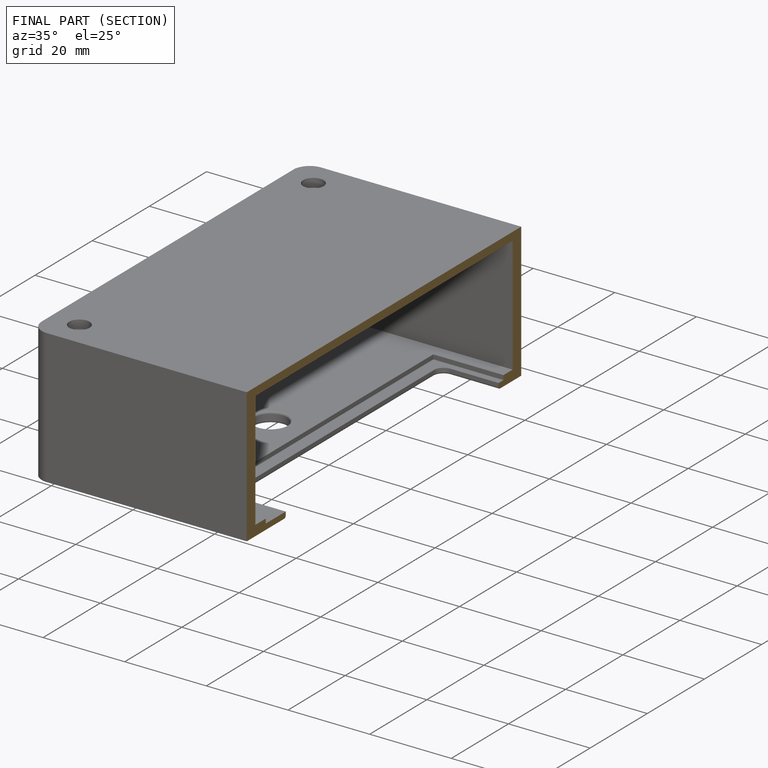
[diagram: finished part — half-section view (interior)]
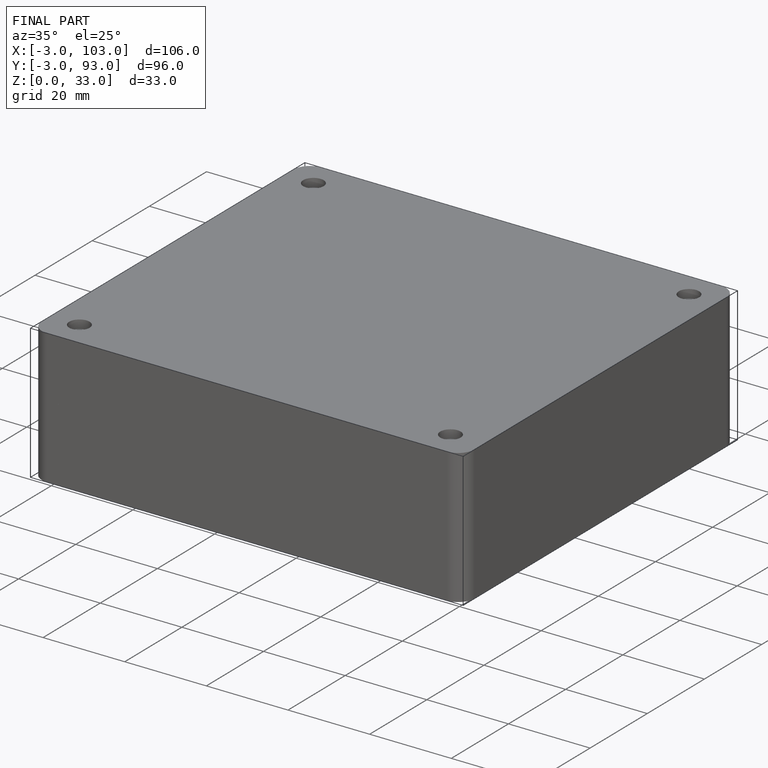
[diagram: finished part — iso view with bounding-box wireframe]
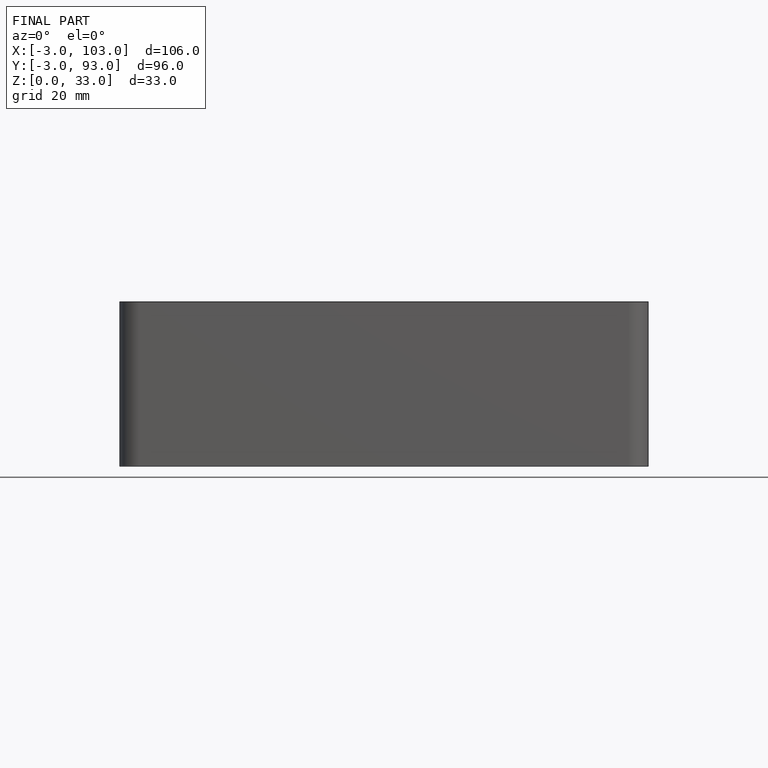
[diagram: finished part — front view with bounding-box wireframe]
